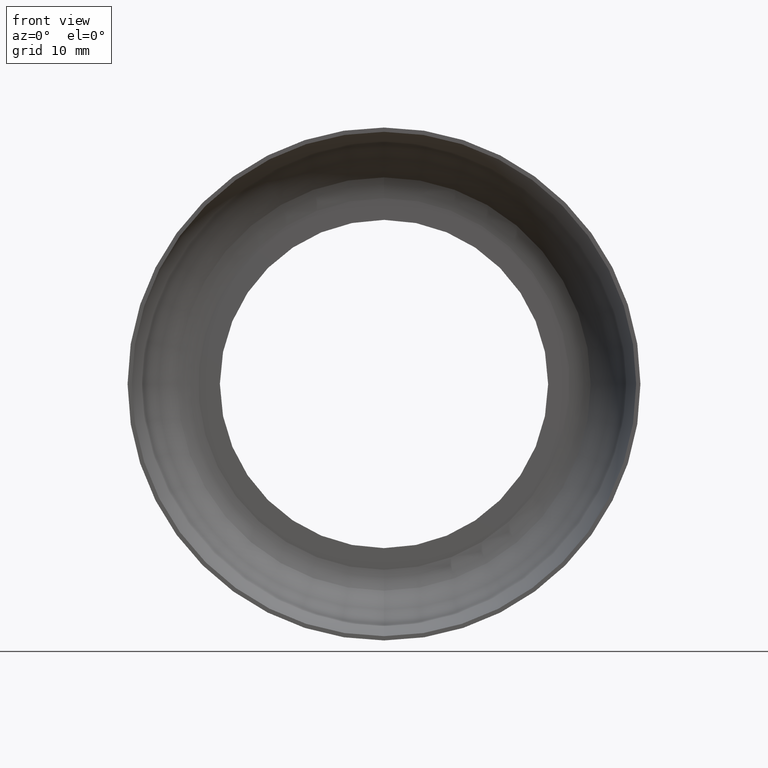
[diagram: clean part render]
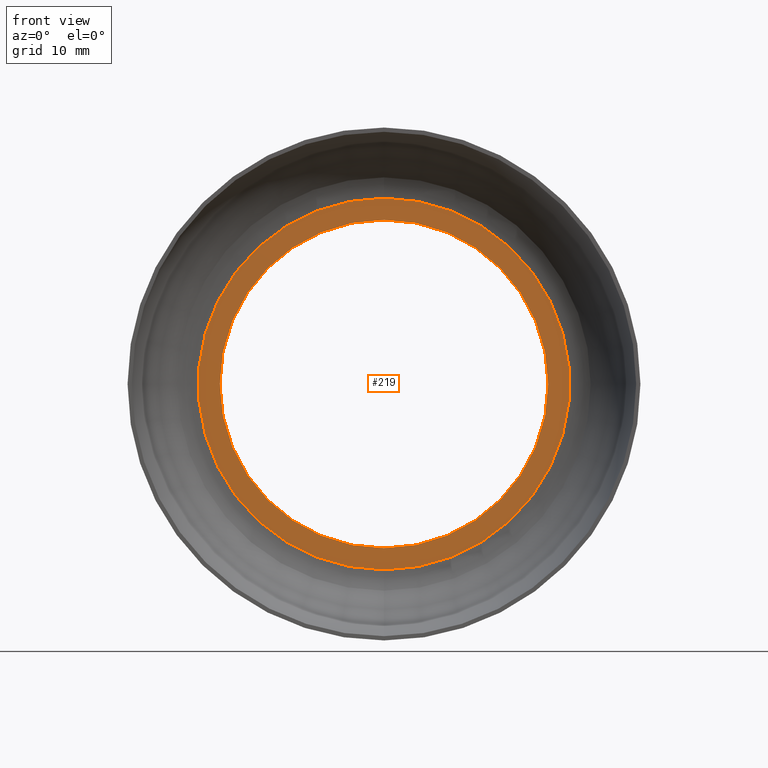
[diagram: same view with one face highlighted and labeled with its STEP entity id]
A machine part, front view. The second image highlights one B-rep face of the part: STEP entity #219.
In plain terms, the highlighted planar face has unit normal (0, 1, 0).
Its self-contained STEP definition (entity closure, byte-faithful):
#7 = AXIS2_PLACEMENT_3D ( 'NONE', #57, #86, #311 ) ;
#16 = CARTESIAN_POINT ( 'NONE',  ( 0.0000000000000000000, 10.49999999999999800, -21.73275999035729800 ) ) ;
#19 = CIRCLE ( 'NONE', #387, 21.73275999035729800 ) ;
#25 = EDGE_CURVE ( 'NONE', #285, #210, #298, .T. ) ;
#32 = ORIENTED_EDGE ( 'NONE', *, *, #25, .T. ) ;
#39 = DIRECTION ( 'NONE',  ( 0.0000000000000000000, 0.0000000000000000000, -1.000000000000000000 ) ) ;
#40 = ORIENTED_EDGE ( 'NONE', *, *, #103, .T. ) ;
#57 = CARTESIAN_POINT ( 'NONE',  ( 0.0000000000000000000, 10.49999999999999800, 0.0000000000000000000 ) ) ;
#73 = CARTESIAN_POINT ( 'NONE',  ( 0.0000000000000000000, 10.49999999999999800, 19.19999999999999900 ) ) ;
#83 = AXIS2_PLACEMENT_3D ( 'NONE', #176, #369, #183 ) ;
#86 = DIRECTION ( 'NONE',  ( -0.0000000000000000000, -1.000000000000000000, -0.0000000000000000000 ) ) ;
#99 = DIRECTION ( 'NONE',  ( -0.0000000000000000000, -1.000000000000000000, -0.0000000000000000000 ) ) ;
#103 = EDGE_CURVE ( 'NONE', #320, #228, #274, .T. ) ;
#139 = FACE_BOUND ( 'NONE', #372, .T. ) ;
#142 = DIRECTION ( 'NONE',  ( 0.0000000000000000000, 0.0000000000000000000, 1.000000000000000000 ) ) ;
#154 = CARTESIAN_POINT ( 'NONE',  ( 2.351321854362917700E-015, 10.49999999999999800, -19.19999999999999900 ) ) ;
#176 = CARTESIAN_POINT ( 'NONE',  ( 0.0000000000000000000, 10.49999999999999800, 0.0000000000000000000 ) ) ;
#183 = DIRECTION ( 'NONE',  ( 0.0000000000000000000, 0.0000000000000000000, 1.000000000000000000 ) ) ;
#191 = DIRECTION ( 'NONE',  ( 0.0000000000000000000, -0.0000000000000000000, 1.000000000000000000 ) ) ;
#202 = DIRECTION ( 'NONE',  ( 0.0000000000000000000, 1.000000000000000000, 0.0000000000000000000 ) ) ;
#206 = EDGE_CURVE ( 'NONE', #228, #320, #248, .T. ) ;
#210 = VERTEX_POINT ( 'NONE', #397 ) ;
#219 = ADVANCED_FACE ( 'NONE', ( #139, #257 ), #340, .F. ) ;
#220 = DIRECTION ( 'NONE',  ( 0.0000000000000000000, 1.000000000000000000, 0.0000000000000000000 ) ) ;
#228 = VERTEX_POINT ( 'NONE', #154 ) ;
#248 = CIRCLE ( 'NONE', #83, 19.19999999999999900 ) ;
#257 = FACE_OUTER_BOUND ( 'NONE', #323, .T. ) ;
#260 = EDGE_CURVE ( 'NONE', #210, #285, #19, .T. ) ;
#272 = CARTESIAN_POINT ( 'NONE',  ( 0.0000000000000000000, 10.49999999999999800, 0.0000000000000000000 ) ) ;
#274 = CIRCLE ( 'NONE', #310, 19.19999999999999900 ) ;
#285 = VERTEX_POINT ( 'NONE', #16 ) ;
#291 = CARTESIAN_POINT ( 'NONE',  ( 0.0000000000000000000, 10.49999999999999800, 0.0000000000000000000 ) ) ;
#298 = CIRCLE ( 'NONE', #7, 21.73275999035729800 ) ;
#310 = AXIS2_PLACEMENT_3D ( 'NONE', #272, #202, #142 ) ;
#311 = DIRECTION ( 'NONE',  ( 0.0000000000000000000, 0.0000000000000000000, -1.000000000000000000 ) ) ;
#319 = AXIS2_PLACEMENT_3D ( 'NONE', #359, #220, #191 ) ;
#320 = VERTEX_POINT ( 'NONE', #73 ) ;
#323 = EDGE_LOOP ( 'NONE', ( #32, #365 ) ) ;
#340 = PLANE ( 'NONE',  #319 ) ;
#359 = CARTESIAN_POINT ( 'NONE',  ( 0.0000000000000000000, 10.49999999999999800, 0.0000000000000000000 ) ) ;
#365 = ORIENTED_EDGE ( 'NONE', *, *, #260, .T. ) ;
#369 = DIRECTION ( 'NONE',  ( 0.0000000000000000000, 1.000000000000000000, 0.0000000000000000000 ) ) ;
#372 = EDGE_LOOP ( 'NONE', ( #40, #378 ) ) ;
#378 = ORIENTED_EDGE ( 'NONE', *, *, #206, .T. ) ;
#387 = AXIS2_PLACEMENT_3D ( 'NONE', #291, #99, #39 ) ;
#397 = CARTESIAN_POINT ( 'NONE',  ( 2.811002752565591000E-015, 10.49999999999999800, 21.73275999035729800 ) ) ;